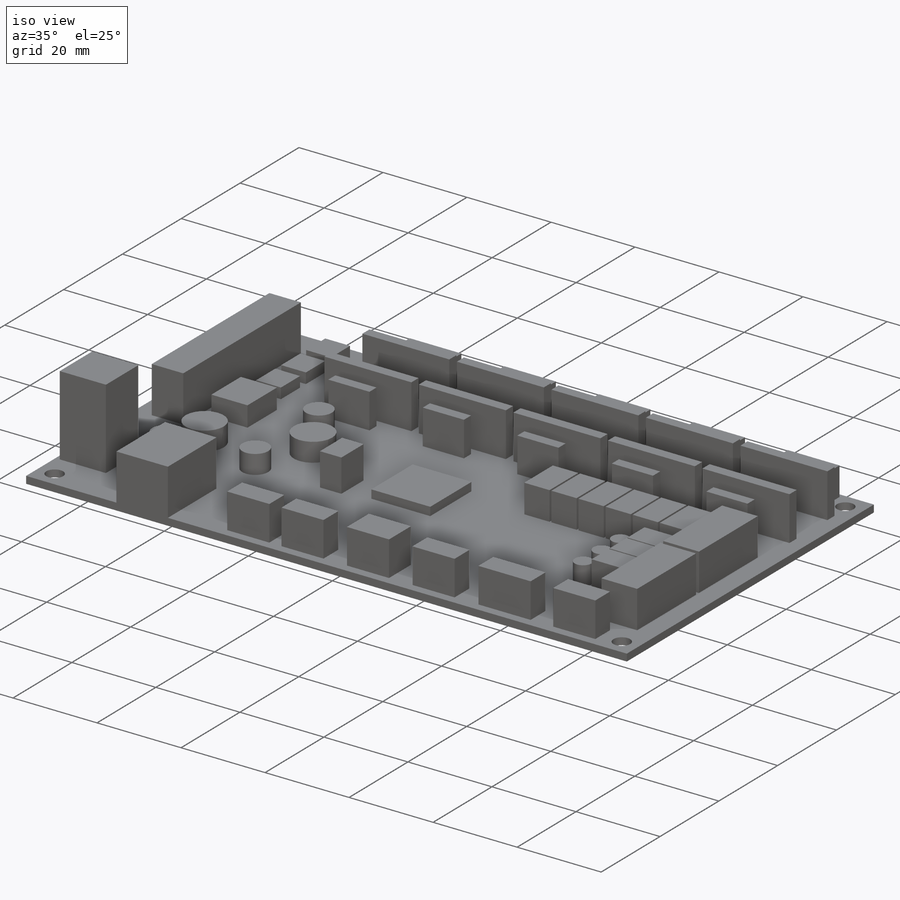
[diagram: iso view]
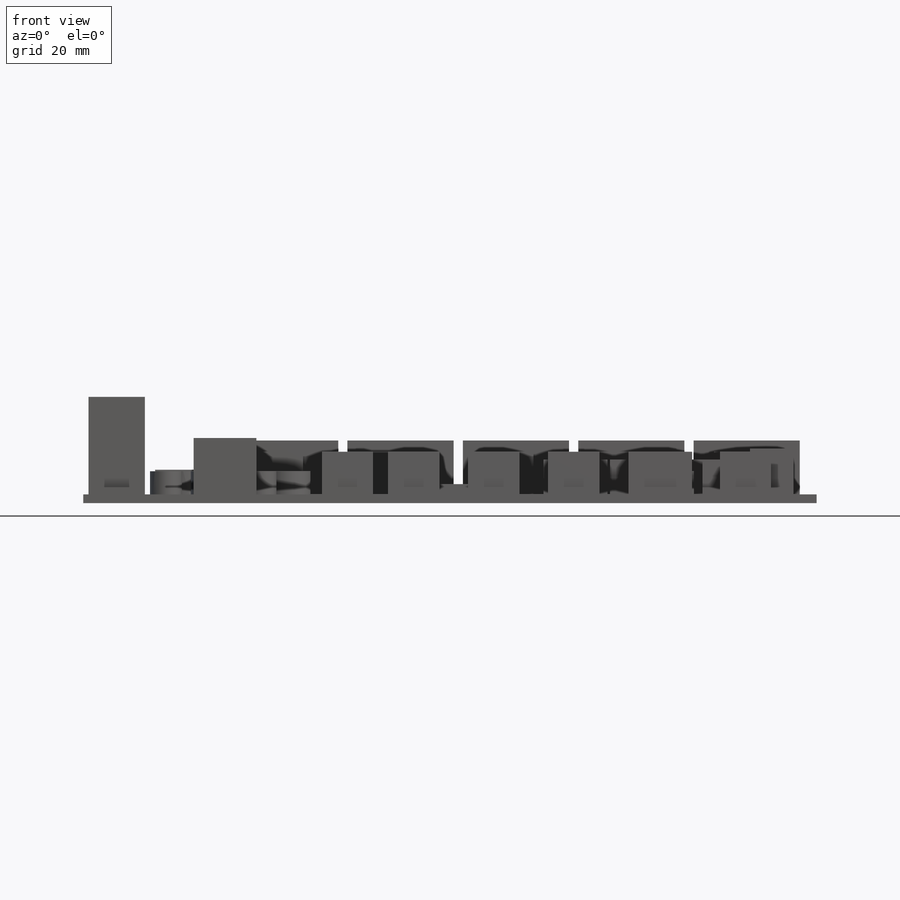
[diagram: front view]
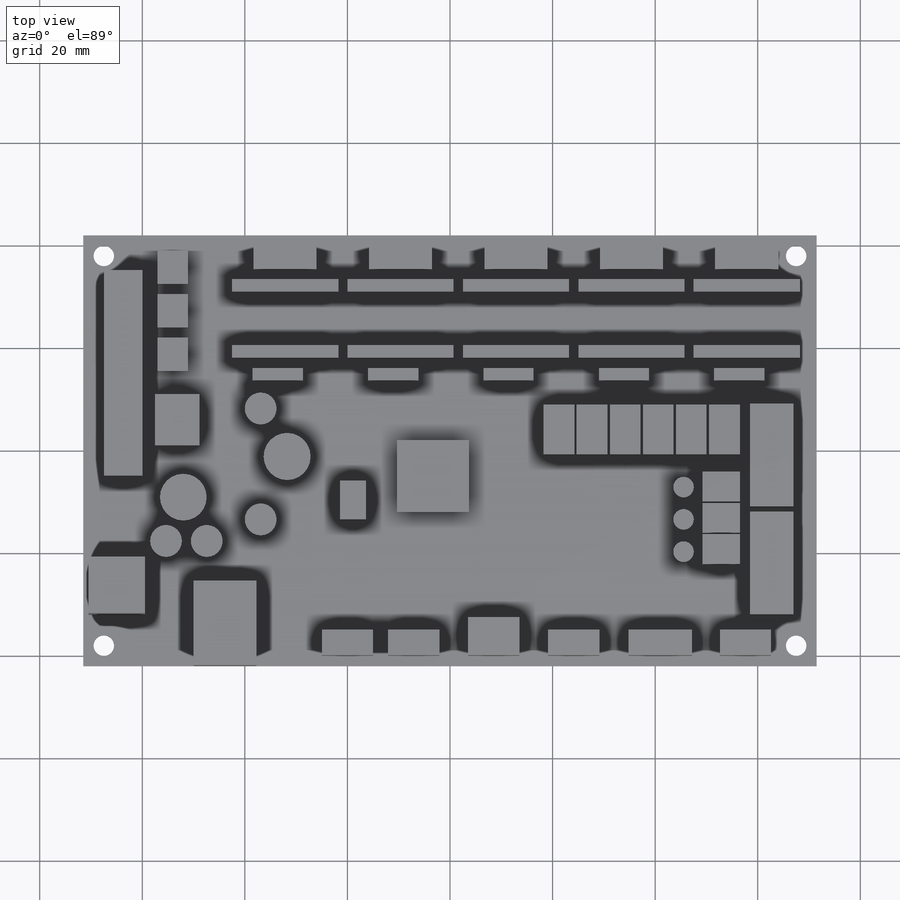
[diagram: top view]
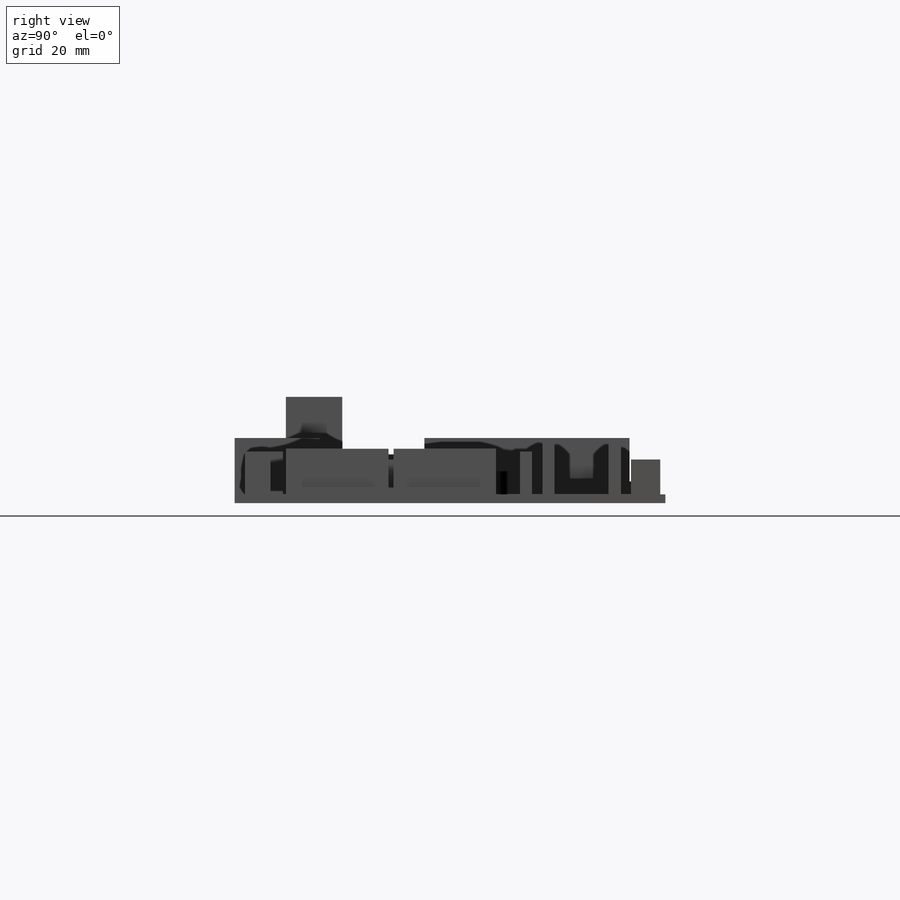
[diagram: right view]
SOLIDWORKS PART (.sldprt)
format: sldprt  version: not decoded by parser v0  size: 696,832 bytes
history: native  units: mm
features: sketch x16, extrude x16, material x1 (+13 scaffold rows collapsed)
feature tree (46):
  scaffold x13  (default folders/planes/origin — collapsed)
  material  "Material <not specified>"
  sketch  "PCB"  dims[D3=4.0mm D1=84.0mm D2=143.0mm D4=4.0mm D5=4.0mm]
  extrude  "Boss-PCB"  Depth=1.7mm
  sketch  "BlueConnector"  dims[D1=40.0mm D2=7.5mm D3=7.0mm D4=4.0mm]
  extrude  "Boss-BlueConnector"  Depth=11mm
  sketch  "GreenConnector"  dims[D1=11.0mm D2=11.0mm D3=1.0mm D4=10.0mm]
  extrude  "Boss-GreenConnector"  Depth=19mm
  sketch  "Usb"  dims[D1=12.25mm D2=16.5mm D3=21.5mm]
  extrude  "Boss-Usb"  Depth=11mm
  sketch  "DriverSockets"  dims[D1=10.5mm D2=2.4mm D3=20.7mm D4=8.7mm D5=29.0mm D7=2.4mm D6=5.0]
  extrude  "Boss-DriverSockets"  Depth=10.5mm
  sketch  "NemaSockets"  dims[D1=5.7mm D2=12.3mm D3=1.0mm D4=33.2mm D5=5.0]
  extrude  "Boss-NemaSockets"  Depth=6.8mm
  sketch  "Sketch2"  dims[c1.D1=20.0mm c1.D2=20.0mm c1.D3=8.5mm c1.D4=1.0mm c2.D1=10.0mm]
  extrude  "Boss-Extrude2"  Depth=8.9mm
  sketch  "Sketch3"  dims[D1=6.0mm D2=9.7mm D3=41.2mm D5=15.0mm D4=6.0]
  extrude  "Boss-Extrude3"  Depth=6.8mm
  sketch  "Sketch4"  dims[D1=5.8mm D2=7.25mm D4=18.0mm D5=15.0mm D6=19.8mm D3=3.0]
  extrude  "Boss-Extrude4"  Depth=6.8mm
  sketch  "Sketch5"  dims[D2=4.0mm D3=6.2mm D1=3.0]
  extrude  "Boss-Extrude5"  Depth=4.5mm
  sketch  "Sketch6"  dims[D1=6.5mm D2=5.9mm D3=3.0mm D4=14.5mm D5=3.0]
  extrude  "Boss-Extrude6"  Depth=2.5mm
  sketch  "Sketch7"  dims[D1=10.0mm D2=8.6mm D3=14.0mm D4=31.0mm]
  extrude  "Boss-Extrude7"  Depth=4.8mm
  sketch  "Sketch8"  dims[D1=5.1mm D2=7.5mm D3=48.0mm D4=50.0mm]
  extrude  "Boss-Extrude8"  Depth=7.8mm
  sketch  "Sketch9"  dims[D1=14.0mm D2=14.0mm D3=40.0mm D4=61.2mm]
  extrude  "Boss-Extrude9"  Depth=2mm
  sketch  "Sketch10"  dims[c1.D1=10.0mm c1.D2=5.0mm c1.D3=7.4mm c1.D4=7.4mm c1.D5=8.9mm c1.D6=24.3mm c1.D7=58.0mm c1.D8=12.4mm c2.D4=42.4mm c2.D9=73.6mm c2.D10=86.5mm c2.D11=2.0mm]
  extrude  "Boss-Extrude10"  Depth=8.3mm
  sketch  "Sketch11"  dims[D1=2.4mm D2=9.8mm D4=33.0mm D5=26.0mm D3=5.0]
  extrude  "Boss-Extrude11"  Depth=8.3mm
decode coverage: 32 of 32 modeling features carry decoded parameters
note: suppression state not decoded; provenance and decode notes live in map.json
